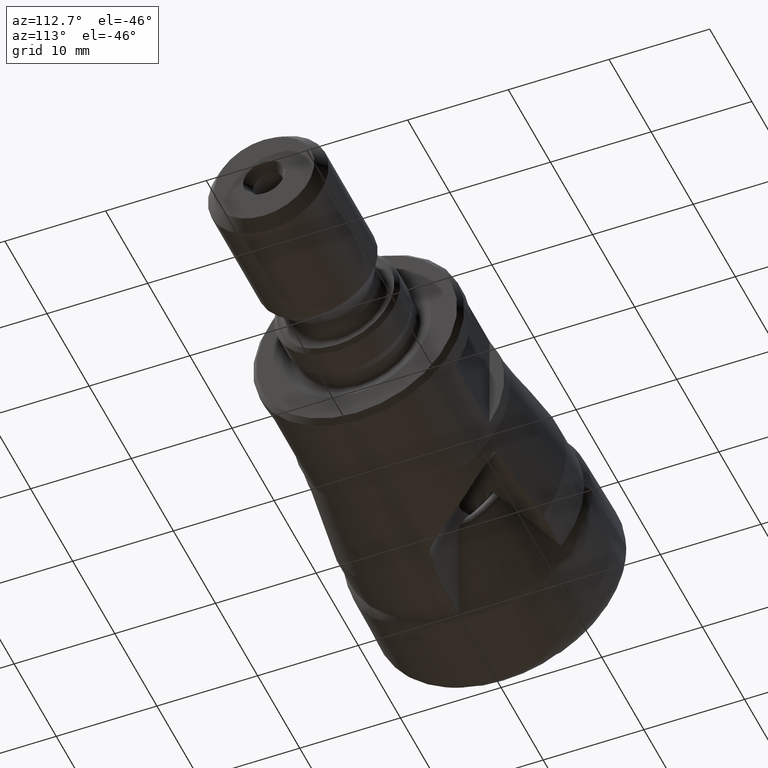
[diagram: clean part render]
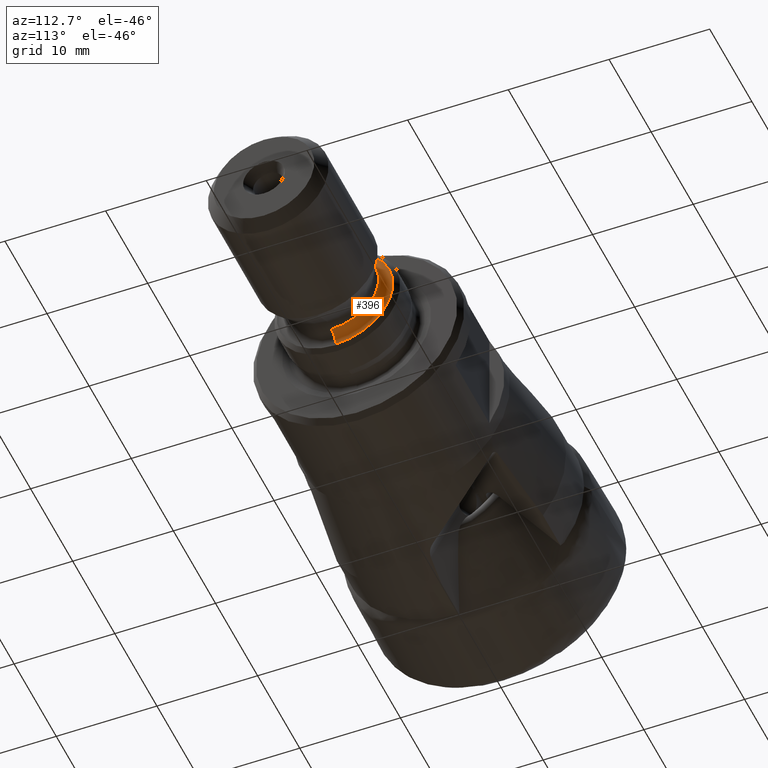
[diagram: same view with one face highlighted and labeled with its STEP entity id]
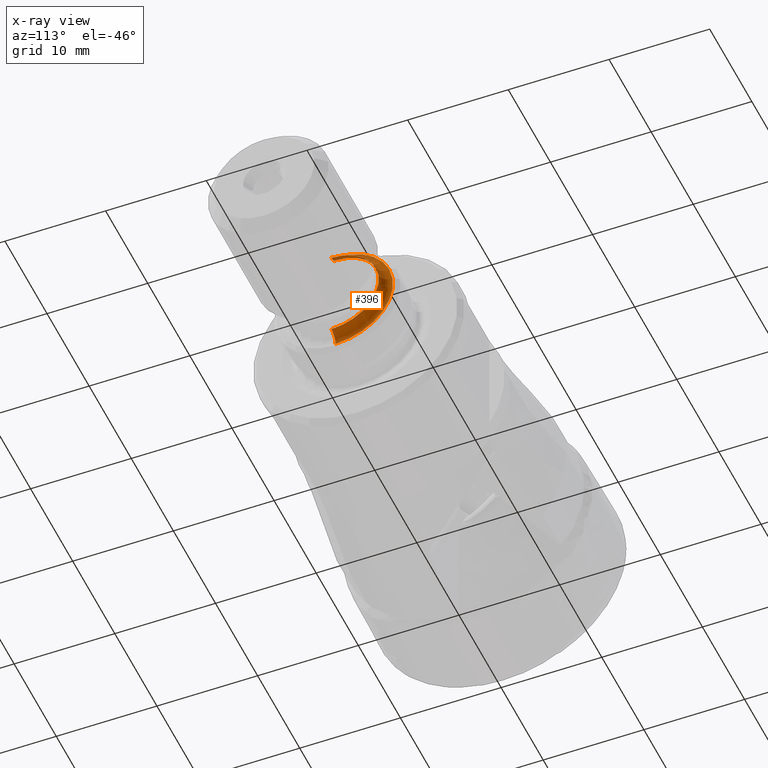
[diagram: x-ray of the same camera — body ghosted, the highlighted face saturated]
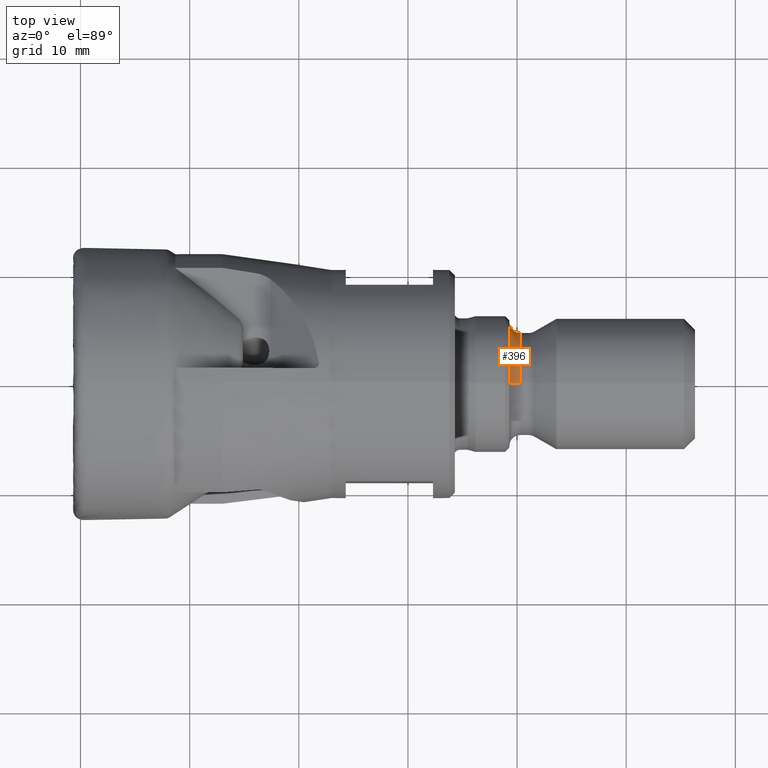
[diagram: same view with one face highlighted and labeled with its STEP entity id]
A machine part, auxiliary view. The second image highlights one B-rep face of the part: STEP entity #396.
The next image is the same camera in x-ray: the body ghosted, the highlighted face saturated — about 10% of this face is hidden behind the body in this view.
A second angle (top view) of the same face is appended — the face is thin or edge-on in the first view.
In plain terms, the highlighted toroidal blend (fillet) surface has major radius 5.7 mm and minor (blend) radius 1 mm.
Its self-contained STEP definition (entity closure, byte-faithful):
#50 = CARTESIAN_POINT ( 'NONE',  ( 40.29999999999990500, 0.0000000000000000000, 4.699999999998268200 ) ) ;
#59 = EDGE_CURVE ( 'NONE', #907, #1644, #2841, .T. ) ;
#129 = DIRECTION ( 'NONE',  ( 0.0000000000000000000, -1.000000000000000000, 0.0000000000000000000 ) ) ;
#258 = CARTESIAN_POINT ( 'NONE',  ( 40.29999999999990500, 0.0000000000000000000, 0.0000000000000000000 ) ) ;
#396 = ADVANCED_FACE ( 'NONE', ( #5229 ), #2895, .F. ) ;
#428 = VERTEX_POINT ( 'NONE', #50 ) ;
#466 = ORIENTED_EDGE ( 'NONE', *, *, #59, .F. ) ;
#557 = DIRECTION ( 'NONE',  ( 0.0000000000000000000, 0.0000000000000000000, -1.000000000000000000 ) ) ;
#694 = ORIENTED_EDGE ( 'NONE', *, *, #5644, .T. ) ;
#857 = CIRCLE ( 'NONE', #2722, 4.699999999998268200 ) ;
#907 = VERTEX_POINT ( 'NONE', #1834 ) ;
#1124 = DIRECTION ( 'NONE',  ( -1.000000000000000000, -0.0000000000000000000, -0.0000000000000000000 ) ) ;
#1368 = DIRECTION ( 'NONE',  ( 0.0000000000000000000, 0.0000000000000000000, 1.000000000000000000 ) ) ;
#1609 = DIRECTION ( 'NONE',  ( 0.0000000000000000000, 0.0000000000000000000, 1.000000000000000000 ) ) ;
#1644 = VERTEX_POINT ( 'NONE', #5412 ) ;
#1834 = CARTESIAN_POINT ( 'NONE',  ( 39.30000000000115500, 0.0000000000000000000, 5.699999999997020300 ) ) ;
#1958 = CIRCLE ( 'NONE', #4905, 0.9999999999987518900 ) ;
#2417 = DIRECTION ( 'NONE',  ( -1.000000000000000000, -0.0000000000000000000, -0.0000000000000000000 ) ) ;
#2722 = AXIS2_PLACEMENT_3D ( 'NONE', #258, #1124, #4252 ) ;
#2775 = CARTESIAN_POINT ( 'NONE',  ( 40.29999999999990500, 0.0000000000000000000, 5.699999999997020300 ) ) ;
#2841 = CIRCLE ( 'NONE', #4355, 5.699999999997020300 ) ;
#2895 = TOROIDAL_SURFACE ( 'NONE', #4568, 5.699999999997020300, 0.9999999999987518900 ) ;
#2965 = VERTEX_POINT ( 'NONE', #5250 ) ;
#3133 = CARTESIAN_POINT ( 'NONE',  ( 40.29999999999990500, 6.980486755136263600E-016, -5.699999999997020300 ) ) ;
#3198 = CARTESIAN_POINT ( 'NONE',  ( 40.29999999999990500, 0.0000000000000000000, 0.0000000000000000000 ) ) ;
#3634 = DIRECTION ( 'NONE',  ( -0.0000000000000000000, 1.000000000000000000, 1.224646799147353200E-016 ) ) ;
#3781 = CARTESIAN_POINT ( 'NONE',  ( 39.30000000000115500, 0.0000000000000000000, 0.0000000000000000000 ) ) ;
#4068 = EDGE_LOOP ( 'NONE', ( #4765, #466, #4630, #694 ) ) ;
#4161 = EDGE_CURVE ( 'NONE', #907, #428, #5080, .T. ) ;
#4252 = DIRECTION ( 'NONE',  ( 0.0000000000000000000, 0.0000000000000000000, 1.000000000000000000 ) ) ;
#4355 = AXIS2_PLACEMENT_3D ( 'NONE', #3781, #2417, #1609 ) ;
#4568 = AXIS2_PLACEMENT_3D ( 'NONE', #3198, #5387, #1368 ) ;
#4630 = ORIENTED_EDGE ( 'NONE', *, *, #4161, .T. ) ;
#4765 = ORIENTED_EDGE ( 'NONE', *, *, #5599, .F. ) ;
#4905 = AXIS2_PLACEMENT_3D ( 'NONE', #3133, #3634, #4981 ) ;
#4981 = DIRECTION ( 'NONE',  ( 0.0000000000000000000, -1.224646799147352700E-016, 1.000000000000000000 ) ) ;
#5080 = CIRCLE ( 'NONE', #5193, 0.9999999999987518900 ) ;
#5193 = AXIS2_PLACEMENT_3D ( 'NONE', #2775, #129, #557 ) ;
#5229 = FACE_OUTER_BOUND ( 'NONE', #4068, .T. ) ;
#5250 = CARTESIAN_POINT ( 'NONE',  ( 40.29999999999990500, 5.755839955990438600E-016, -4.699999999998268200 ) ) ;
#5387 = DIRECTION ( 'NONE',  ( -1.000000000000000000, -0.0000000000000000000, -0.0000000000000000000 ) ) ;
#5412 = CARTESIAN_POINT ( 'NONE',  ( 39.30000000000115500, 6.980486755136263600E-016, -5.699999999997020300 ) ) ;
#5599 = EDGE_CURVE ( 'NONE', #1644, #2965, #1958, .T. ) ;
#5644 = EDGE_CURVE ( 'NONE', #428, #2965, #857, .T. ) ;